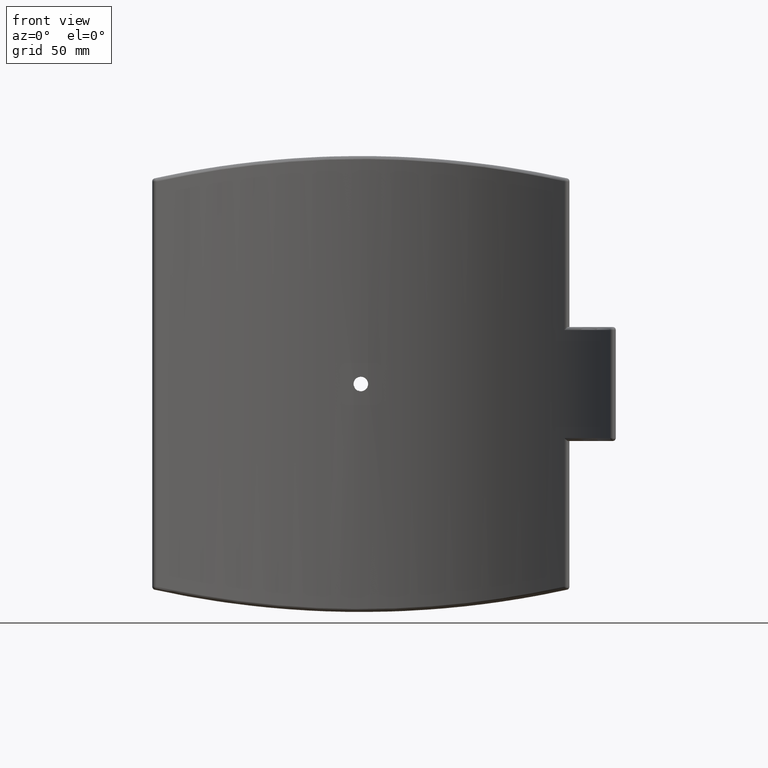
[diagram: clean part render]
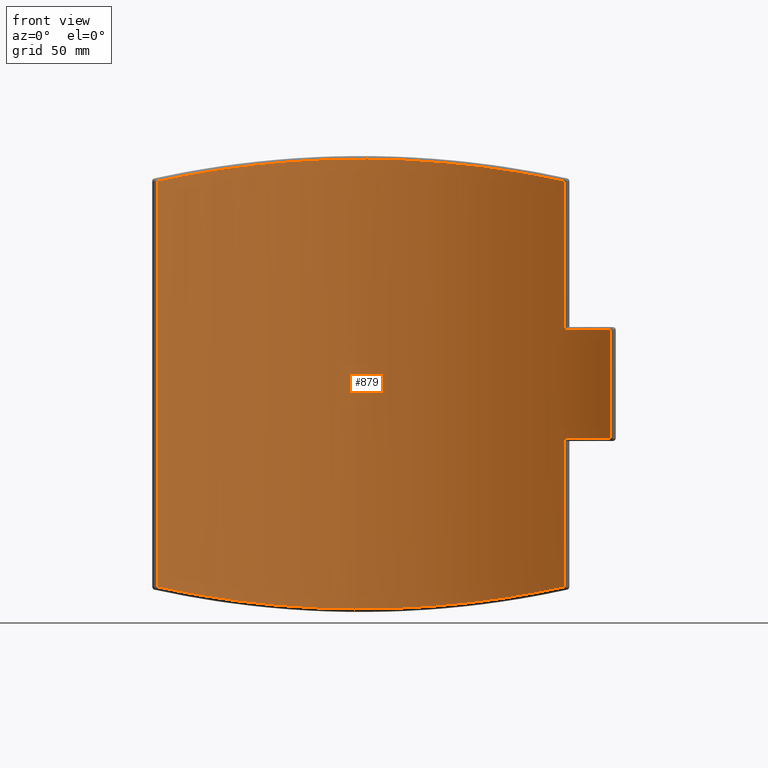
[diagram: same view with one face highlighted and labeled with its STEP entity id]
A machine part, front view. The second image highlights one B-rep face of the part: STEP entity #879.
In plain terms, the highlighted cylindrical surface (partial cylindrical patch) has radius 200 mm, axis along (0, 0, 1).
Its self-contained STEP definition (entity closure, byte-faithful):
#37=LINE('',#1971,#67);
#41=LINE('',#2066,#71);
#48=LINE('',#2103,#78);
#53=LINE('',#2226,#83);
#67=VECTOR('',#1194,71.);
#71=VECTOR('',#1210,97.8920048770969);
#78=VECTOR('',#1233,266.784009754194);
#83=VECTOR('',#1258,97.8920048770969);
#101=B_SPLINE_CURVE_WITH_KNOTS('',3,(#1659,#1660,#1661,#1662,#1663,#1664,
#1665,#1666,#1667,#1668,#1669,#1670,#1671,#1672,#1673,#1674,#1675,#1676,
#1677,#1678,#1679,#1680,#1681,#1682,#1683,#1684,#1685,#1686,#1687,#1688,
#1689,#1690,#1691,#1692),.UNSPECIFIED.,.T.,.F.,(4,2,2,2,2,2,2,2,2,2,2,2,
2,2,2,2,4),(0.,0.180817060233591,0.361634120467183,0.542451178676776,0.723268236886369,
0.904085295095962,1.08490235330556,1.26571941353915,1.44653647377274,1.62735353400633,
1.80817059423992,1.98898765244951,2.16980471065911,2.3506217688687,2.53143882707829,
2.71225588731188,2.89307294754548),.UNSPECIFIED.);
#106=B_SPLINE_CURVE_WITH_KNOTS('',3,(#2042,#2043,#2044,#2045,#2046,#2047,
#2048,#2049,#2050,#2051),.UNSPECIFIED.,.F.,.F.,(4,1,1,1,1,1,1,4),(-35.4445529855151,
-31.1851910725527,-26.9258291595903,-22.6664672466279,-18.4071053336655,
-14.1477434207031,-9.88838150774072,-5.62901959477832),.UNSPECIFIED.);
#112=B_SPLINE_CURVE_WITH_KNOTS('',3,(#2196,#2197,#2198,#2199,#2200,#2201,
#2202,#2203,#2204,#2205),.UNSPECIFIED.,.F.,.F.,(4,1,1,1,1,1,1,4),(-33.5496110408139,
-29.2902491278514,-25.030887214889,-20.7715253019266,-16.5121633889642,
-12.2528014760018,-7.99343956303935,-3.73407765007693),.UNSPECIFIED.);
#141=CYLINDRICAL_SURFACE('',#1005,200.);
#178=FACE_BOUND('',#331,.T.);
#242=FACE_OUTER_BOUND('',#330,.T.);
#330=EDGE_LOOP('',(#791,#792,#793,#794,#795,#796,#797,#798));
#331=EDGE_LOOP('',(#799));
#390=CIRCLE('',#980,200.);
#393=CIRCLE('',#988,200.);
#416=VERTEX_POINT('',#1658);
#433=VERTEX_POINT('',#1784);
#438=VERTEX_POINT('',#1860);
#447=VERTEX_POINT('',#1886);
#448=VERTEX_POINT('',#1890);
#453=VERTEX_POINT('',#1963);
#458=VERTEX_POINT('',#1979);
#460=VERTEX_POINT('',#2065);
#464=VERTEX_POINT('',#2107);
#488=EDGE_CURVE('',#416,#416,#101,.T.);
#540=EDGE_CURVE('',#453,#447,#37,.T.);
#546=EDGE_CURVE('',#448,#458,#106,.T.);
#549=EDGE_CURVE('',#458,#460,#41,.T.);
#552=EDGE_CURVE('',#460,#453,#390,.T.);
#561=EDGE_CURVE('',#438,#448,#48,.T.);
#563=EDGE_CURVE('',#447,#464,#393,.T.);
#571=EDGE_CURVE('',#433,#438,#112,.T.);
#575=EDGE_CURVE('',#464,#433,#53,.T.);
#791=ORIENTED_EDGE('',*,*,#546,.F.);
#792=ORIENTED_EDGE('',*,*,#561,.F.);
#793=ORIENTED_EDGE('',*,*,#571,.F.);
#794=ORIENTED_EDGE('',*,*,#575,.F.);
#795=ORIENTED_EDGE('',*,*,#563,.F.);
#796=ORIENTED_EDGE('',*,*,#540,.F.);
#797=ORIENTED_EDGE('',*,*,#552,.F.);
#798=ORIENTED_EDGE('',*,*,#549,.F.);
#799=ORIENTED_EDGE('',*,*,#488,.T.);
#879=ADVANCED_FACE('',(#242,#178),#141,.F.);
#980=AXIS2_PLACEMENT_3D('',#2082,#1215,#1216);
#988=AXIS2_PLACEMENT_3D('',#2108,#1238,#1239);
#1005=AXIS2_PLACEMENT_3D('',#2242,#1282,#1283);
#1194=DIRECTION('',(0.,0.,-1.));
#1210=DIRECTION('',(0.,0.,-1.));
#1215=DIRECTION('center_axis',(0.,0.,-1.));
#1216=DIRECTION('ref_axis',(0.767961388285212,0.64049614058404,0.));
#1233=DIRECTION('',(0.,0.,1.));
#1238=DIRECTION('center_axis',(0.,0.,1.));
#1239=DIRECTION('ref_axis',(0.767961388285212,0.64049614058404,0.));
#1258=DIRECTION('',(0.,0.,-1.));
#1282=DIRECTION('center_axis',(0.,0.,1.));
#1283=DIRECTION('ref_axis',(-1.,0.,0.));
#1658=CARTESIAN_POINT('',(4.8,199.94239170321,-1.38777878078145E-16));
#1659=CARTESIAN_POINT('Ctrl Pts',(4.8,199.94239170321,-1.38777878078145E-16));
#1660=CARTESIAN_POINT('Ctrl Pts',(4.8,199.94239170321,-0.602723534111971));
#1661=CARTESIAN_POINT('Ctrl Pts',(4.67954083216235,199.945397343844,-1.24560563054448));
#1662=CARTESIAN_POINT('Ctrl Pts',(4.1896760719842,199.956261806887,-2.42821955680468));
#1663=CARTESIAN_POINT('Ctrl Pts',(3.8202717566496,199.963964722883,-2.96795334274125));
#1664=CARTESIAN_POINT('Ctrl Pts',(2.96795334751152,199.978431129239,-3.82027175187934));
#1665=CARTESIAN_POINT('Ctrl Pts',(2.42821955905803,199.986133077268,-4.18967607003134));
#1666=CARTESIAN_POINT('Ctrl Pts',(1.2456056265593,199.996995327551,-4.67954083483257));
#1667=CARTESIAN_POINT('Ctrl Pts',(0.60272352736531,200.,-4.8));
#1668=CARTESIAN_POINT('Ctrl Pts',(-0.602723527365311,200.,-4.8));
#1669=CARTESIAN_POINT('Ctrl Pts',(-1.2456056265593,199.996995327551,-4.67954083483257));
#1670=CARTESIAN_POINT('Ctrl Pts',(-2.42821955905804,199.986133077268,-4.18967607003134));
#1671=CARTESIAN_POINT('Ctrl Pts',(-2.96795334751152,199.978431129239,-3.82027175187934));
#1672=CARTESIAN_POINT('Ctrl Pts',(-3.8202717566496,199.963964722883,-2.96795334274125));
#1673=CARTESIAN_POINT('Ctrl Pts',(-4.1896760719842,199.956261806887,-2.42821955680468));
#1674=CARTESIAN_POINT('Ctrl Pts',(-4.67954083216235,199.945397343844,-1.24560563054448));
#1675=CARTESIAN_POINT('Ctrl Pts',(-4.8,199.94239170321,-0.602723534111971));
#1676=CARTESIAN_POINT('Ctrl Pts',(-4.8,199.94239170321,0.602723534111971));
#1677=CARTESIAN_POINT('Ctrl Pts',(-4.67954083216235,199.945397343844,1.24560563054448));
#1678=CARTESIAN_POINT('Ctrl Pts',(-4.1896760719842,199.956261806887,2.42821955680468));
#1679=CARTESIAN_POINT('Ctrl Pts',(-3.8202717566496,199.963964722883,2.96795334274125));
#1680=CARTESIAN_POINT('Ctrl Pts',(-2.96795334751152,199.978431129239,3.82027175187934));
#1681=CARTESIAN_POINT('Ctrl Pts',(-2.42821955905804,199.986133077268,4.18967607003134));
#1682=CARTESIAN_POINT('Ctrl Pts',(-1.2456056265593,199.996995327551,4.67954083483257));
#1683=CARTESIAN_POINT('Ctrl Pts',(-0.602723527365311,200.,4.8));
#1684=CARTESIAN_POINT('Ctrl Pts',(0.602723527365309,200.,4.8));
#1685=CARTESIAN_POINT('Ctrl Pts',(1.2456056265593,199.996995327551,4.67954083483257));
#1686=CARTESIAN_POINT('Ctrl Pts',(2.42821955905803,199.986133077268,4.18967607003134));
#1687=CARTESIAN_POINT('Ctrl Pts',(2.96795334751152,199.978431129239,3.82027175187934));
#1688=CARTESIAN_POINT('Ctrl Pts',(3.8202717566496,199.963964722883,2.96795334274125));
#1689=CARTESIAN_POINT('Ctrl Pts',(4.1896760719842,199.956261806887,2.42821955680468));
#1690=CARTESIAN_POINT('Ctrl Pts',(4.67954083216235,199.945397343844,1.24560563054448));
#1691=CARTESIAN_POINT('Ctrl Pts',(4.8,199.94239170321,0.602723534111971));
#1692=CARTESIAN_POINT('Ctrl Pts',(4.8,199.94239170321,-2.77555756156289E-16));
#1784=CARTESIAN_POINT('',(133.910891089109,148.552594214039,-133.392004877097));
#1860=CARTESIAN_POINT('',(-133.910891089109,148.552594214039,-133.392004877097));
#1886=CARTESIAN_POINT('',(164.108910891089,114.316513969507,-35.5));
#1890=CARTESIAN_POINT('',(-133.910891089109,148.552594214039,133.392004877097));
#1963=CARTESIAN_POINT('',(164.108910891089,114.316513969507,35.5));
#1971=CARTESIAN_POINT('',(164.108910891089,114.316513969507,0.));
#1979=CARTESIAN_POINT('',(133.910891089109,148.552594214039,133.392004877097));
#2042=CARTESIAN_POINT('Ctrl Pts',(-133.910891089118,148.552594214031,133.392004877095));
#2043=CARTESIAN_POINT('Ctrl Pts',(-123.604752868002,157.842934515249,135.667085320113));
#2044=CARTESIAN_POINT('Ctrl Pts',(-101.036218724514,174.289703117976,140.094344602753));
#2045=CARTESIAN_POINT('Ctrl Pts',(-62.6150184562832,191.499867021492,145.276154651404));
#2046=CARTESIAN_POINT('Ctrl Pts',(-21.2161006319526,200.368188973299,148.117108541962));
#2047=CARTESIAN_POINT('Ctrl Pts',(21.2163930641213,200.369713574989,148.118476920115));
#2048=CARTESIAN_POINT('Ctrl Pts',(62.6146544596855,191.49859090136,145.275028312001));
#2049=CARTESIAN_POINT('Ctrl Pts',(101.035977724692,174.29068165987,140.095074797805));
#2050=CARTESIAN_POINT('Ctrl Pts',(123.604576926162,157.843093115834,135.667124159281));
#2051=CARTESIAN_POINT('Ctrl Pts',(133.910891089109,148.552594214039,133.392004877097));
#2065=CARTESIAN_POINT('',(133.910891089109,148.552594214039,35.5));
#2066=CARTESIAN_POINT('',(133.910891089109,148.552594214039,0.));
#2082=CARTESIAN_POINT('Origin',(0.,0.,35.5));
#2103=CARTESIAN_POINT('',(-133.910891089109,148.552594214039,0.));
#2107=CARTESIAN_POINT('',(133.910891089109,148.552594214039,-35.5));
#2108=CARTESIAN_POINT('Origin',(0.,0.,-35.5));
#2196=CARTESIAN_POINT('Ctrl Pts',(133.910891089119,148.55259421403,-133.392004877095));
#2197=CARTESIAN_POINT('Ctrl Pts',(123.604576926173,157.843093115826,-135.667124159279));
#2198=CARTESIAN_POINT('Ctrl Pts',(101.035539059808,174.290130943579,-140.094467062208));
#2199=CARTESIAN_POINT('Ctrl Pts',(62.6152349368051,191.499645031378,-145.276092033215));
#2200=CARTESIAN_POINT('Ctrl Pts',(21.2159953369663,200.368340063816,-148.117151951753));
#2201=CARTESIAN_POINT('Ctrl Pts',(-21.2164980577146,200.36954271126,-148.118427718073));
#2202=CARTESIAN_POINT('Ctrl Pts',(-62.614475081052,191.498774741084,-145.275080229167));
#2203=CARTESIAN_POINT('Ctrl Pts',(-101.036607213343,174.290267290732,-140.09495688298));
#2204=CARTESIAN_POINT('Ctrl Pts',(-123.604752867993,157.842934515257,-135.667085320115));
#2205=CARTESIAN_POINT('Ctrl Pts',(-133.910891089109,148.552594214039,-133.392004877097));
#2226=CARTESIAN_POINT('',(133.910891089109,148.552594214039,0.));
#2242=CARTESIAN_POINT('Origin',(0.,0.,0.));